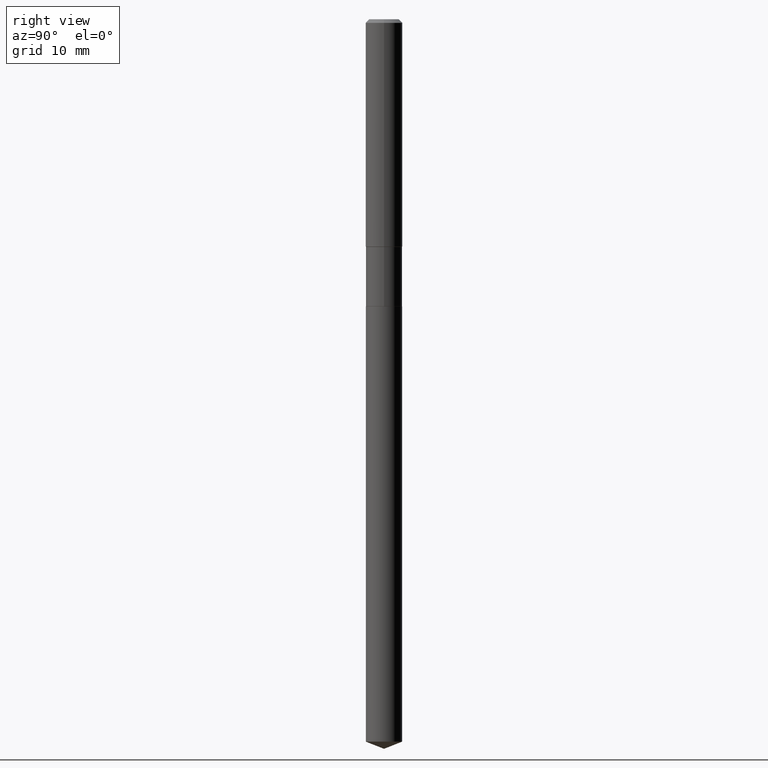
[diagram: clean part render]
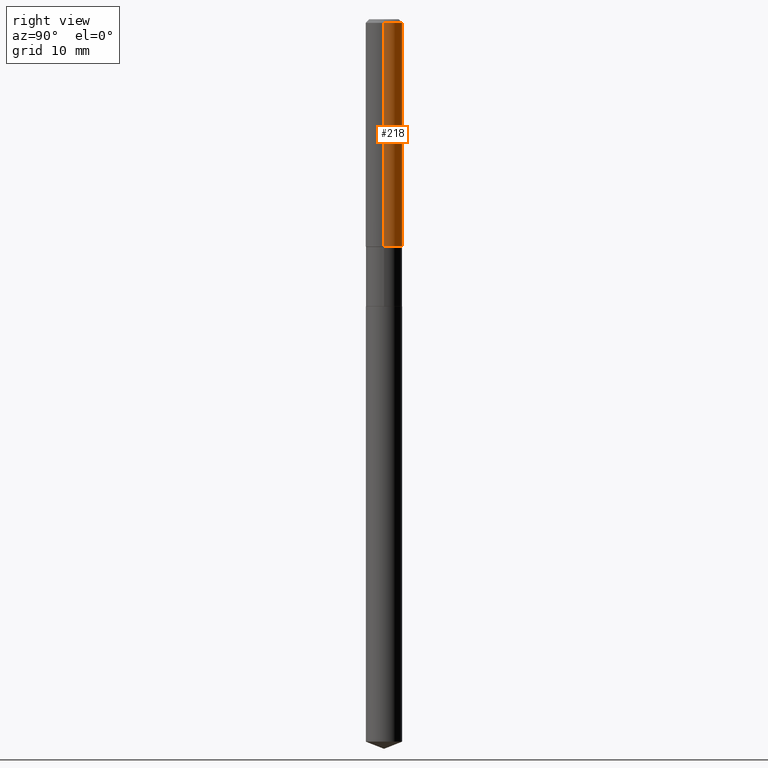
[diagram: same view with one face highlighted and labeled with its STEP entity id]
A machine part, right view. The second image highlights one B-rep face of the part: STEP entity #218.
In plain terms, the highlighted cylindrical surface (edge-blend (fillet) strip) has radius 2.9997 mm, axis along (-0, 0, 1).
Its self-contained STEP definition (entity closure, byte-faithful):
#9 = FACE_OUTER_BOUND ( 'NONE', #203, .T. ) ;
#15 = VECTOR ( 'NONE', #403, 39.37007874015748143 ) ;
#19 = CARTESIAN_POINT ( 'NONE',  ( 0.1180999999999999966, -9.071566814582237199E-16, -0.02362000000000014088 ) ) ;
#20 = CIRCLE ( 'NONE', #100, 0.1181000000000001632 ) ;
#21 = AXIS2_PLACEMENT_3D ( 'NONE', #353, #132, #86 ) ;
#45 = VERTEX_POINT ( 'NONE', #296 ) ;
#58 = CARTESIAN_POINT ( 'NONE',  ( 5.776197320209327532E-31, -8.246878922347559293E-17, -0.02362000000000014088 ) ) ;
#59 = VECTOR ( 'NONE', #434, 39.37007874015748143 ) ;
#75 = VERTEX_POINT ( 'NONE', #431 ) ;
#86 = DIRECTION ( 'NONE',  ( 1.000000000000000000, -6.982962677686266711E-15, 4.876176775795936353E-29 ) ) ;
#99 = CARTESIAN_POINT ( 'NONE',  ( -0.1181000000000001632, -4.255793172774176789E-15, -1.459249999999998826 ) ) ;
#100 = AXIS2_PLACEMENT_3D ( 'NONE', #212, #268, #458 ) ;
#104 = LINE ( 'NONE', #255, #15 ) ;
#120 = ORIENTED_EDGE ( 'NONE', *, *, #337, .F. ) ;
#132 = DIRECTION ( 'NONE',  ( -2.445468806185136597E-29, 3.491481338843145583E-15, 1.000000000000000000 ) ) ;
#148 = DIRECTION ( 'NONE',  ( 1.000000000000000000, -6.982962677686266711E-15, 0.000000000000000000 ) ) ;
#175 = EDGE_CURVE ( 'NONE', #45, #357, #20, .T. ) ;
#181 = DIRECTION ( 'NONE',  ( -2.445468806185136597E-29, 3.491481338843145583E-15, 1.000000000000000000 ) ) ;
#190 = ORIENTED_EDGE ( 'NONE', *, *, #175, .T. ) ;
#203 = EDGE_LOOP ( 'NONE', ( #190, #311, #417, #120 ) ) ;
#212 = CARTESIAN_POINT ( 'NONE',  ( 3.568550355425657830E-29, -5.094944143706856564E-15, -1.459249999999998826 ) ) ;
#214 = LINE ( 'NONE', #284, #59 ) ;
#218 = ADVANCED_FACE ( 'NONE', ( #9 ), #462, .T. ) ;
#235 = AXIS2_PLACEMENT_3D ( 'NONE', #58, #181, #148 ) ;
#243 = CIRCLE ( 'NONE', #235, 0.1180999999999999966 ) ;
#255 = CARTESIAN_POINT ( 'NONE',  ( -0.1181000000000000799, 8.391509709326788873E-16, -5.809262341591047988E-30 ) ) ;
#268 = DIRECTION ( 'NONE',  ( -2.445468806185136597E-29, 3.491481338843145583E-15, 1.000000000000000000 ) ) ;
#284 = CARTESIAN_POINT ( 'NONE',  ( 0.1181000000000000799, -8.246878922347486570E-16, 5.758764772215004644E-30 ) ) ;
#296 = CARTESIAN_POINT ( 'NONE',  ( 0.1181000000000001632, -5.919632035941605615E-15, -1.459249999999998826 ) ) ;
#311 = ORIENTED_EDGE ( 'NONE', *, *, #399, .T. ) ;
#318 = VERTEX_POINT ( 'NONE', #19 ) ;
#324 = EDGE_CURVE ( 'NONE', #318, #75, #243, .T. ) ;
#337 = EDGE_CURVE ( 'NONE', #45, #318, #214, .T. ) ;
#353 = CARTESIAN_POINT ( 'NONE',  ( 0.000000000000000000, 0.000000000000000000, 0.000000000000000000 ) ) ;
#357 = VERTEX_POINT ( 'NONE', #99 ) ;
#399 = EDGE_CURVE ( 'NONE', #357, #75, #104, .T. ) ;
#403 = DIRECTION ( 'NONE',  ( -2.445468806185136877E-29, 3.491481338843145188E-15, 1.000000000000000000 ) ) ;
#417 = ORIENTED_EDGE ( 'NONE', *, *, #324, .F. ) ;
#431 = CARTESIAN_POINT ( 'NONE',  ( -0.1180999999999999966, -1.749555495532486433E-15, -0.02362000000000014088 ) ) ;
#434 = DIRECTION ( 'NONE',  ( -2.445468806185136877E-29, 3.491481338843145188E-15, 1.000000000000000000 ) ) ;
#458 = DIRECTION ( 'NONE',  ( 1.000000000000000000, -6.982962677686263555E-15, 0.000000000000000000 ) ) ;
#462 = CYLINDRICAL_SURFACE ( 'NONE', #21, 0.1181000000000000799 ) ;